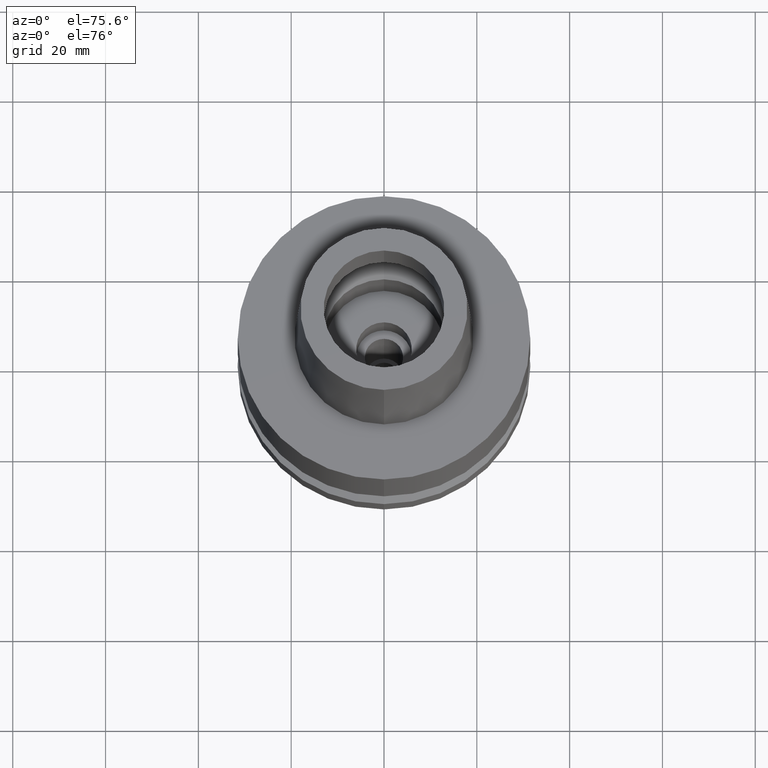
[diagram: clean part render]
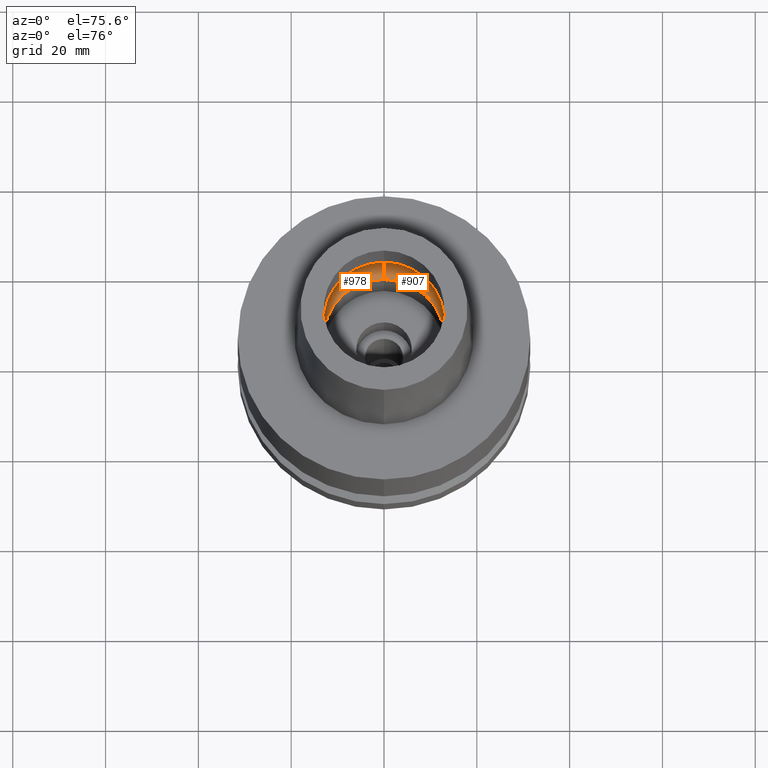
[diagram: same view with one multi-face feature highlighted, each face labeled with its STEP entity id]
A machine part, auxiliary view. The highlighted faces form ONE feature: a constant-radius fillet chain: 2 tangent blend faces with common blend radius 6 mm. The faces share edges in the B-rep.
Their STEP definitions:
[1] entity #907 (Torus):
#19 = VERTEX_POINT ( 'NONE', #2391 ) ;
#54 = ORIENTED_EDGE ( 'NONE', *, *, #233, .F. ) ;
#66 = ORIENTED_EDGE ( 'NONE', *, *, #1262, .T. ) ;
#233 = EDGE_CURVE ( 'NONE', #1622, #19, #838, .T. ) ;
#277 = CARTESIAN_POINT ( 'NONE',  ( 0.0000000000000000000, 16.00000000000000000, 5.245999999999999552 ) ) ;
#347 = AXIS2_PLACEMENT_3D ( 'NONE', #357, #2461, #1176 ) ;
#357 = CARTESIAN_POINT ( 'NONE',  ( 0.0000000000000000000, -10.00000000000000000, 5.245999999999999552 ) ) ;
#361 = DIRECTION ( 'NONE',  ( 0.0000000000000000000, 0.5000000000000169864, -0.8660254037844289376 ) ) ;
#479 = AXIS2_PLACEMENT_3D ( 'NONE', #1944, #2133, #874 ) ;
#600 = CARTESIAN_POINT ( 'NONE',  ( 0.0000000000000000000, 13.00000000000000000, 0.04984757729328000153 ) ) ;
#701 = CIRCLE ( 'NONE', #347, 6.000000000000000000 ) ;
#803 = CIRCLE ( 'NONE', #479, 13.00000000000000000 ) ;
#838 = CIRCLE ( 'NONE', #878, 16.00000000000000000 ) ;
#852 = CIRCLE ( 'NONE', #1348, 6.000000000000000000 ) ;
#874 = DIRECTION ( 'NONE',  ( 0.0000000000000000000, -1.000000000000000000, 0.0000000000000000000 ) ) ;
#878 = AXIS2_PLACEMENT_3D ( 'NONE', #993, #1403, #1789 ) ;
#907 = ADVANCED_FACE ( 'NONE', ( #972 ), #2521, .F. ) ;
#972 = FACE_OUTER_BOUND ( 'NONE', #1299, .T. ) ;
#993 = CARTESIAN_POINT ( 'NONE',  ( 0.0000000000000000000, 0.0000000000000000000, 5.245999999999999552 ) ) ;
#1171 = VERTEX_POINT ( 'NONE', #1371 ) ;
#1176 = DIRECTION ( 'NONE',  ( 0.0000000000000000000, -0.5000000000000169864, -0.8660254037844289376 ) ) ;
#1262 = EDGE_CURVE ( 'NONE', #1171, #19, #701, .T. ) ;
#1299 = EDGE_LOOP ( 'NONE', ( #1606, #66, #54, #2603 ) ) ;
#1348 = AXIS2_PLACEMENT_3D ( 'NONE', #2068, #2302, #361 ) ;
#1371 = CARTESIAN_POINT ( 'NONE',  ( 0.0000000000000000000, -13.00000000000000000, 0.04984757729334999415 ) ) ;
#1403 = DIRECTION ( 'NONE',  ( 0.0000000000000000000, 0.0000000000000000000, -1.000000000000000000 ) ) ;
#1441 = DIRECTION ( 'NONE',  ( 0.0000000000000000000, 0.0000000000000000000, 1.000000000000000000 ) ) ;
#1606 = ORIENTED_EDGE ( 'NONE', *, *, #1957, .F. ) ;
#1622 = VERTEX_POINT ( 'NONE', #277 ) ;
#1789 = DIRECTION ( 'NONE',  ( 0.0000000000000000000, 1.000000000000000000, 0.0000000000000000000 ) ) ;
#1914 = DIRECTION ( 'NONE',  ( 0.0000000000000000000, 1.000000000000000000, 0.0000000000000000000 ) ) ;
#1944 = CARTESIAN_POINT ( 'NONE',  ( 0.0000000000000000000, 0.0000000000000000000, 0.04984757729334999415 ) ) ;
#1957 = EDGE_CURVE ( 'NONE', #1171, #2551, #803, .T. ) ;
#2068 = CARTESIAN_POINT ( 'NONE',  ( 0.0000000000000000000, 10.00000000000000000, 5.245999999999999552 ) ) ;
#2112 = AXIS2_PLACEMENT_3D ( 'NONE', #2569, #1441, #1914 ) ;
#2133 = DIRECTION ( 'NONE',  ( 0.0000000000000000000, 0.0000000000000000000, 1.000000000000000000 ) ) ;
#2302 = DIRECTION ( 'NONE',  ( 1.000000000000000000, 0.0000000000000000000, 0.0000000000000000000 ) ) ;
#2391 = CARTESIAN_POINT ( 'NONE',  ( 0.0000000000000000000, -16.00000000000000000, 5.245999999999999552 ) ) ;
#2461 = DIRECTION ( 'NONE',  ( -1.000000000000000000, 0.0000000000000000000, 0.0000000000000000000 ) ) ;
#2521 = TOROIDAL_SURFACE ( 'NONE', #2112, 10.00000000000000000, 6.000000000000000000 ) ;
#2527 = EDGE_CURVE ( 'NONE', #2551, #1622, #852, .T. ) ;
#2551 = VERTEX_POINT ( 'NONE', #600 ) ;
#2569 = CARTESIAN_POINT ( 'NONE',  ( 0.0000000000000000000, 0.0000000000000000000, 5.245999999999999552 ) ) ;
#2603 = ORIENTED_EDGE ( 'NONE', *, *, #2527, .F. ) ;
[2] entity #978 (Torus):
#19 = VERTEX_POINT ( 'NONE', #2391 ) ;
#210 = DIRECTION ( 'NONE',  ( 0.0000000000000000000, 1.000000000000000000, 0.0000000000000000000 ) ) ;
#218 = AXIS2_PLACEMENT_3D ( 'NONE', #1461, #2767, #1257 ) ;
#277 = CARTESIAN_POINT ( 'NONE',  ( 0.0000000000000000000, 16.00000000000000000, 5.245999999999999552 ) ) ;
#347 = AXIS2_PLACEMENT_3D ( 'NONE', #357, #2461, #1176 ) ;
#357 = CARTESIAN_POINT ( 'NONE',  ( 0.0000000000000000000, -10.00000000000000000, 5.245999999999999552 ) ) ;
#361 = DIRECTION ( 'NONE',  ( 0.0000000000000000000, 0.5000000000000169864, -0.8660254037844289376 ) ) ;
#454 = ORIENTED_EDGE ( 'NONE', *, *, #2561, .F. ) ;
#511 = ORIENTED_EDGE ( 'NONE', *, *, #2527, .T. ) ;
#600 = CARTESIAN_POINT ( 'NONE',  ( 0.0000000000000000000, 13.00000000000000000, 0.04984757729328000153 ) ) ;
#701 = CIRCLE ( 'NONE', #347, 6.000000000000000000 ) ;
#852 = CIRCLE ( 'NONE', #1348, 6.000000000000000000 ) ;
#883 = AXIS2_PLACEMENT_3D ( 'NONE', #2636, #2359, #210 ) ;
#978 = ADVANCED_FACE ( 'NONE', ( #2556 ), #2423, .F. ) ;
#1171 = VERTEX_POINT ( 'NONE', #1371 ) ;
#1176 = DIRECTION ( 'NONE',  ( 0.0000000000000000000, -0.5000000000000169864, -0.8660254037844289376 ) ) ;
#1254 = EDGE_LOOP ( 'NONE', ( #454, #2202, #1647, #511 ) ) ;
#1257 = DIRECTION ( 'NONE',  ( 0.0000000000000000000, -1.000000000000000000, 0.0000000000000000000 ) ) ;
#1262 = EDGE_CURVE ( 'NONE', #1171, #19, #701, .T. ) ;
#1348 = AXIS2_PLACEMENT_3D ( 'NONE', #2068, #2302, #361 ) ;
#1371 = CARTESIAN_POINT ( 'NONE',  ( 0.0000000000000000000, -13.00000000000000000, 0.04984757729334999415 ) ) ;
#1461 = CARTESIAN_POINT ( 'NONE',  ( 0.0000000000000000000, 0.0000000000000000000, 5.245999999999999552 ) ) ;
#1468 = EDGE_CURVE ( 'NONE', #2551, #1171, #2059, .T. ) ;
#1622 = VERTEX_POINT ( 'NONE', #277 ) ;
#1647 = ORIENTED_EDGE ( 'NONE', *, *, #1468, .F. ) ;
#1713 = CARTESIAN_POINT ( 'NONE',  ( 0.0000000000000000000, 0.0000000000000000000, 0.04984757729334999415 ) ) ;
#1887 = CIRCLE ( 'NONE', #218, 16.00000000000000000 ) ;
#2059 = CIRCLE ( 'NONE', #2748, 13.00000000000000000 ) ;
#2068 = CARTESIAN_POINT ( 'NONE',  ( 0.0000000000000000000, 10.00000000000000000, 5.245999999999999552 ) ) ;
#2202 = ORIENTED_EDGE ( 'NONE', *, *, #1262, .F. ) ;
#2302 = DIRECTION ( 'NONE',  ( 1.000000000000000000, 0.0000000000000000000, 0.0000000000000000000 ) ) ;
#2329 = DIRECTION ( 'NONE',  ( 0.0000000000000000000, 0.0000000000000000000, 1.000000000000000000 ) ) ;
#2359 = DIRECTION ( 'NONE',  ( 0.0000000000000000000, 0.0000000000000000000, 1.000000000000000000 ) ) ;
#2391 = CARTESIAN_POINT ( 'NONE',  ( 0.0000000000000000000, -16.00000000000000000, 5.245999999999999552 ) ) ;
#2423 = TOROIDAL_SURFACE ( 'NONE', #883, 10.00000000000000000, 6.000000000000000000 ) ;
#2461 = DIRECTION ( 'NONE',  ( -1.000000000000000000, 0.0000000000000000000, 0.0000000000000000000 ) ) ;
#2527 = EDGE_CURVE ( 'NONE', #2551, #1622, #852, .T. ) ;
#2551 = VERTEX_POINT ( 'NONE', #600 ) ;
#2556 = FACE_OUTER_BOUND ( 'NONE', #1254, .T. ) ;
#2561 = EDGE_CURVE ( 'NONE', #19, #1622, #1887, .T. ) ;
#2585 = DIRECTION ( 'NONE',  ( 0.0000000000000000000, 1.000000000000000000, 0.0000000000000000000 ) ) ;
#2636 = CARTESIAN_POINT ( 'NONE',  ( 0.0000000000000000000, 0.0000000000000000000, 5.245999999999999552 ) ) ;
#2748 = AXIS2_PLACEMENT_3D ( 'NONE', #1713, #2329, #2585 ) ;
#2767 = DIRECTION ( 'NONE',  ( 0.0000000000000000000, 0.0000000000000000000, -1.000000000000000000 ) ) ;